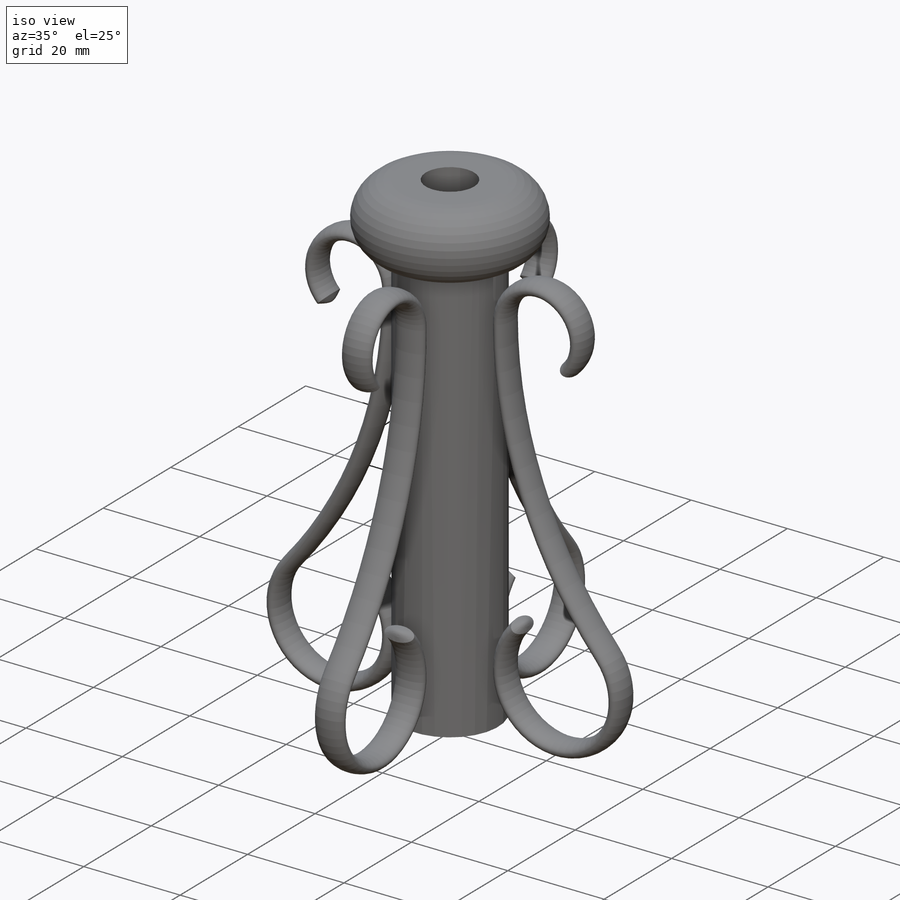
[diagram: iso view]
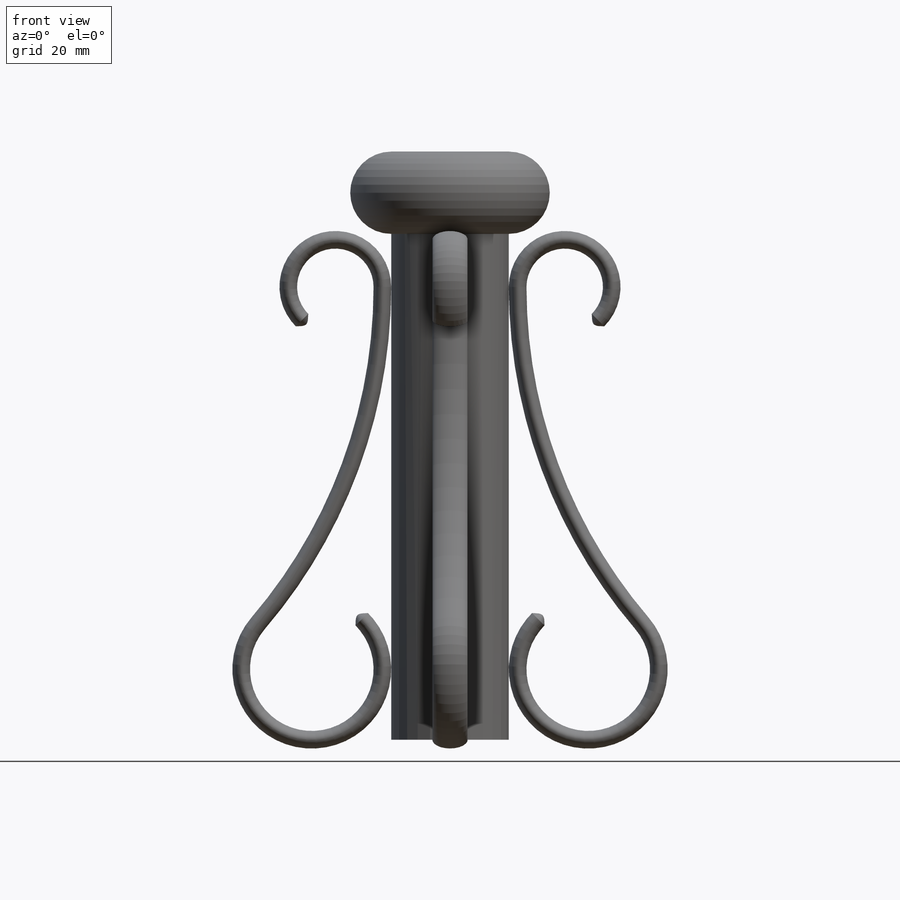
[diagram: front view]
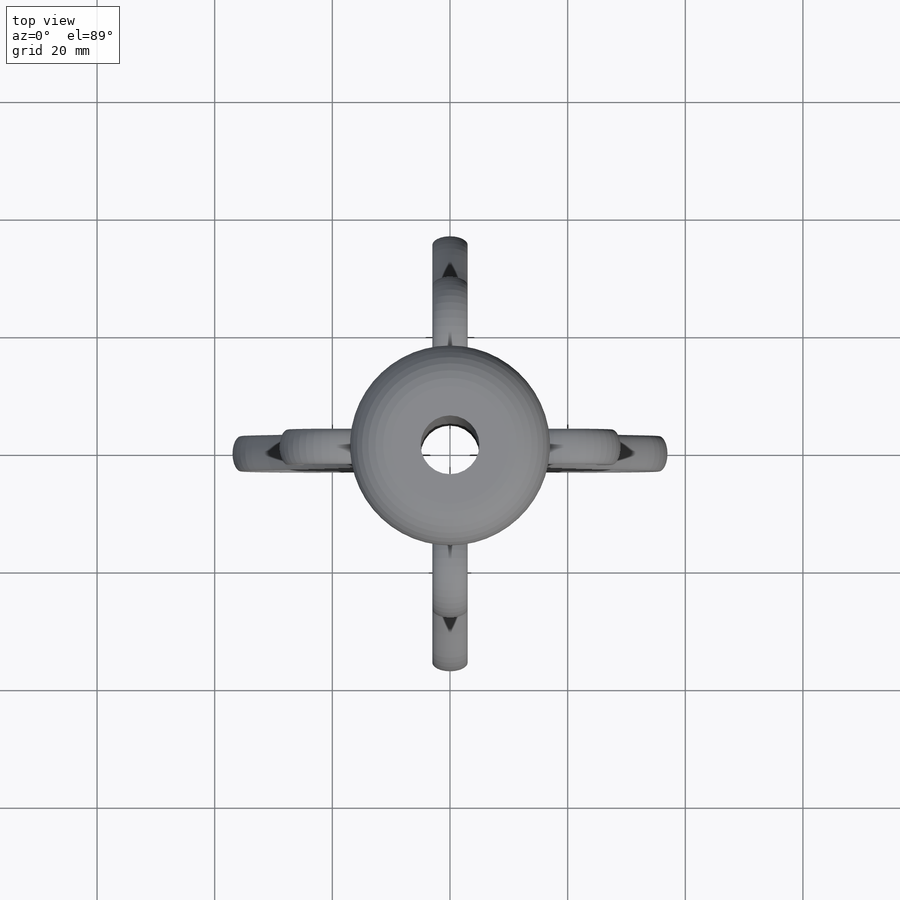
[diagram: top view]
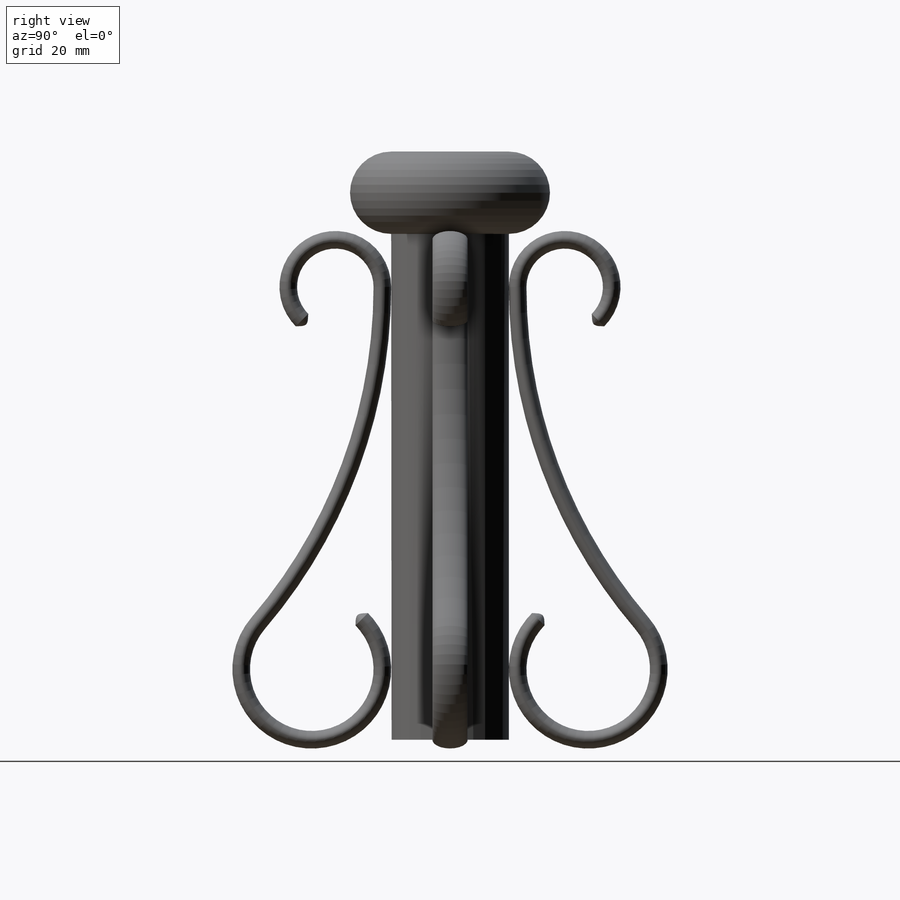
[diagram: right view]
SOLIDWORKS PART (.sldprt)
format: sldprt  version: not decoded by parser v0  size: 1,079,296 bytes
history: native  units: mm
features: sketch x3, material x1, revolve x1, plane x1, sweep x1, dome x1, pattern_circular x1 (+16 scaffold rows collapsed)
feature tree (25):
  scaffold x16  (default folders/planes/origin — collapsed)
  material  "Material <sin especificar>"
  sketch  "Croquis1"  dims[c1.D1=7.0mm c1.D2=100.0mm c1.D3=10.0mm c2.D2=10.0mm c2.D3=5.0mm c2.D4=100.0mm c2.D5=5.0mm]
  revolve  "Revolución1"  Angle=360deg
  sketch  "Croquis4"  dims[c1.D1=16.0mm c1.D2=24.0mm c1.D4=176.0mm c1.D3=65.0mm c1.D5=~93.013747mm c2.D5=45.0deg c2.D6=~20.402286mm c3.D6=45.0deg c3.D7=1.5mm c3.D8=12.0mm]
  plane  "Plano2"
  sketch  "Croquis5"  dims[D1=3.0mm D2=6.0mm]
  sweep  "Barrer2"
  dome  "Cúpula1"
  pattern_circular  "MatrizC8"  Count=4 Angle=360deg
decode coverage: 5 of 7 modeling features carry decoded parameters
note: ~ marks probable driven/reference dimensions
note: suppression state not decoded; provenance and decode notes live in map.json
